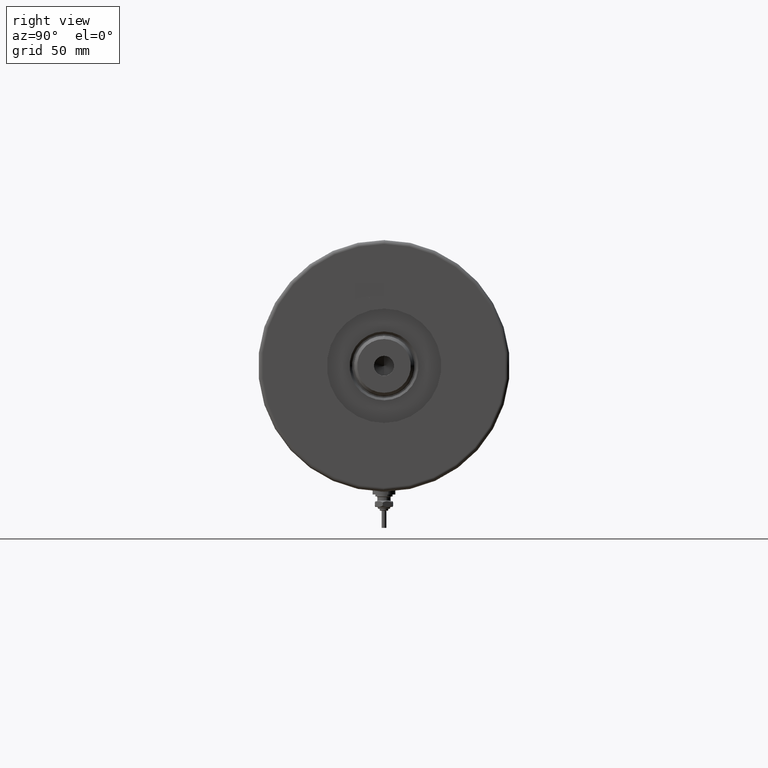
[diagram: clean part render]
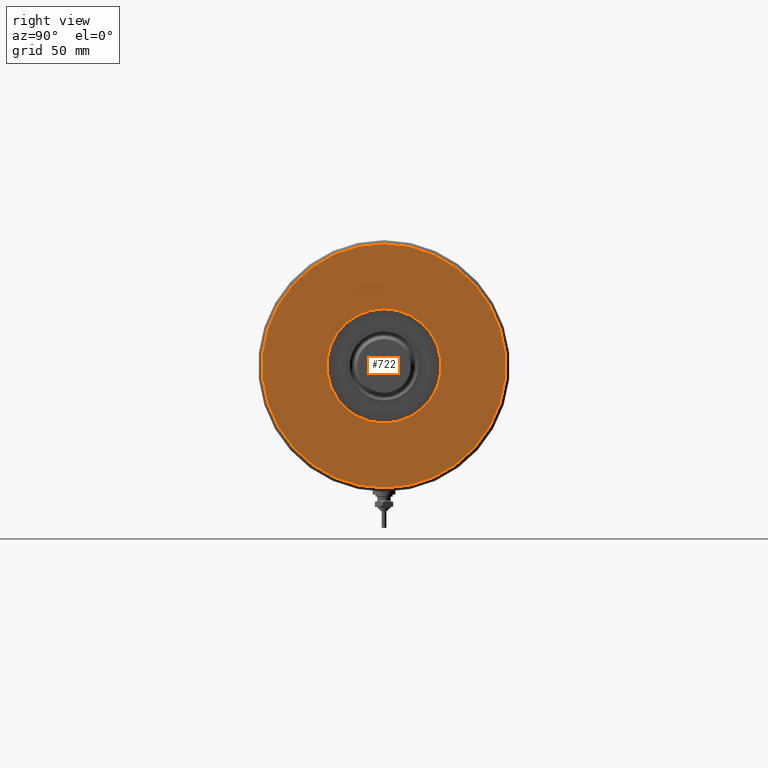
[diagram: same view with one face highlighted and labeled with its STEP entity id]
A machine part, right view. The second image highlights one B-rep face of the part: STEP entity #722.
In plain terms, the highlighted planar face has unit normal (1, 0, -0).
Its self-contained STEP definition (entity closure, byte-faithful):
#104 = ORIENTED_EDGE ( 'NONE', *, *, #4552, .F. ) ;
#170 = CARTESIAN_POINT ( 'NONE',  ( 30.00000000000000000, 0.000000000000000000, 38.00000000000000000 ) ) ;
#330 = EDGE_CURVE ( 'NONE', #2031, #2927, #4109, .T. ) ;
#358 = EDGE_CURVE ( 'NONE', #3033, #6052, #4919, .T. ) ;
#722 = ADVANCED_FACE ( 'NONE', ( #5980, #2864 ), #5122, .T. ) ;
#739 = AXIS2_PLACEMENT_3D ( 'NONE', #802, #5710, #6218 ) ;
#802 = CARTESIAN_POINT ( 'NONE',  ( 0.000000000000000000, 0.000000000000000000, 38.00000000000000000 ) ) ;
#1069 = CARTESIAN_POINT ( 'NONE',  ( 0.000000000000000000, 0.000000000000000000, 38.00000000000000000 ) ) ;
#1115 = CARTESIAN_POINT ( 'NONE',  ( 64.00000000000000000, 0.000000000000000000, 38.00000000000000000 ) ) ;
#1194 = DIRECTION ( 'NONE',  ( 1.000000000000000000, 0.000000000000000000, 0.000000000000000000 ) ) ;
#1358 = AXIS2_PLACEMENT_3D ( 'NONE', #5158, #5676, #1712 ) ;
#1490 = ORIENTED_EDGE ( 'NONE', *, *, #330, .T. ) ;
#1712 = DIRECTION ( 'NONE',  ( 1.000000000000000000, 0.000000000000000000, 0.000000000000000000 ) ) ;
#1769 = DIRECTION ( 'NONE',  ( 0.000000000000000000, 0.000000000000000000, 1.000000000000000000 ) ) ;
#2031 = VERTEX_POINT ( 'NONE', #2662 ) ;
#2086 = EDGE_CURVE ( 'NONE', #2927, #2031, #2168, .T. ) ;
#2168 = CIRCLE ( 'NONE', #739, 64.00000000000000000 ) ;
#2246 = DIRECTION ( 'NONE',  ( 1.000000000000000000, 0.000000000000000000, -0.000000000000000000 ) ) ;
#2348 = AXIS2_PLACEMENT_3D ( 'NONE', #1069, #4318, #2475 ) ;
#2475 = DIRECTION ( 'NONE',  ( 1.000000000000000000, 0.000000000000000000, 0.000000000000000000 ) ) ;
#2507 = EDGE_LOOP ( 'NONE', ( #104, #5407 ) ) ;
#2662 = CARTESIAN_POINT ( 'NONE',  ( -64.00000000000000000, 7.960204194457797252E-15, 38.00000000000000000 ) ) ;
#2864 = FACE_BOUND ( 'NONE', #2507, .T. ) ;
#2927 = VERTEX_POINT ( 'NONE', #1115 ) ;
#3033 = VERTEX_POINT ( 'NONE', #3556 ) ;
#3099 = AXIS2_PLACEMENT_3D ( 'NONE', #5190, #1769, #2246 ) ;
#3103 = EDGE_LOOP ( 'NONE', ( #5031, #1490 ) ) ;
#3514 = DIRECTION ( 'NONE',  ( 0.000000000000000000, 0.000000000000000000, 1.000000000000000000 ) ) ;
#3556 = CARTESIAN_POINT ( 'NONE',  ( -30.00000000000000000, 3.673940397442059178E-15, 38.00000000000000000 ) ) ;
#3612 = CARTESIAN_POINT ( 'NONE',  ( 0.000000000000000000, 0.000000000000000000, 38.00000000000000000 ) ) ;
#4109 = CIRCLE ( 'NONE', #2348, 64.00000000000000000 ) ;
#4221 = AXIS2_PLACEMENT_3D ( 'NONE', #3612, #3514, #1194 ) ;
#4318 = DIRECTION ( 'NONE',  ( 0.000000000000000000, 0.000000000000000000, 1.000000000000000000 ) ) ;
#4552 = EDGE_CURVE ( 'NONE', #6052, #3033, #6089, .T. ) ;
#4919 = CIRCLE ( 'NONE', #4221, 30.00000000000000000 ) ;
#5031 = ORIENTED_EDGE ( 'NONE', *, *, #2086, .T. ) ;
#5122 = PLANE ( 'NONE',  #3099 ) ;
#5158 = CARTESIAN_POINT ( 'NONE',  ( 0.000000000000000000, 0.000000000000000000, 38.00000000000000000 ) ) ;
#5190 = CARTESIAN_POINT ( 'NONE',  ( 0.000000000000000000, 0.000000000000000000, 38.00000000000000000 ) ) ;
#5407 = ORIENTED_EDGE ( 'NONE', *, *, #358, .F. ) ;
#5676 = DIRECTION ( 'NONE',  ( 0.000000000000000000, 0.000000000000000000, 1.000000000000000000 ) ) ;
#5710 = DIRECTION ( 'NONE',  ( 0.000000000000000000, 0.000000000000000000, 1.000000000000000000 ) ) ;
#5980 = FACE_OUTER_BOUND ( 'NONE', #3103, .T. ) ;
#6052 = VERTEX_POINT ( 'NONE', #170 ) ;
#6089 = CIRCLE ( 'NONE', #1358, 30.00000000000000000 ) ;
#6218 = DIRECTION ( 'NONE',  ( 1.000000000000000000, 0.000000000000000000, 0.000000000000000000 ) ) ;